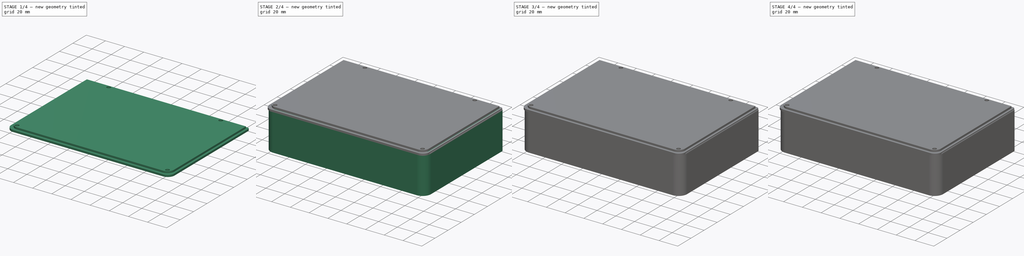
[diagram: build sequence overview — one tinted view per stage of 4, left to right]
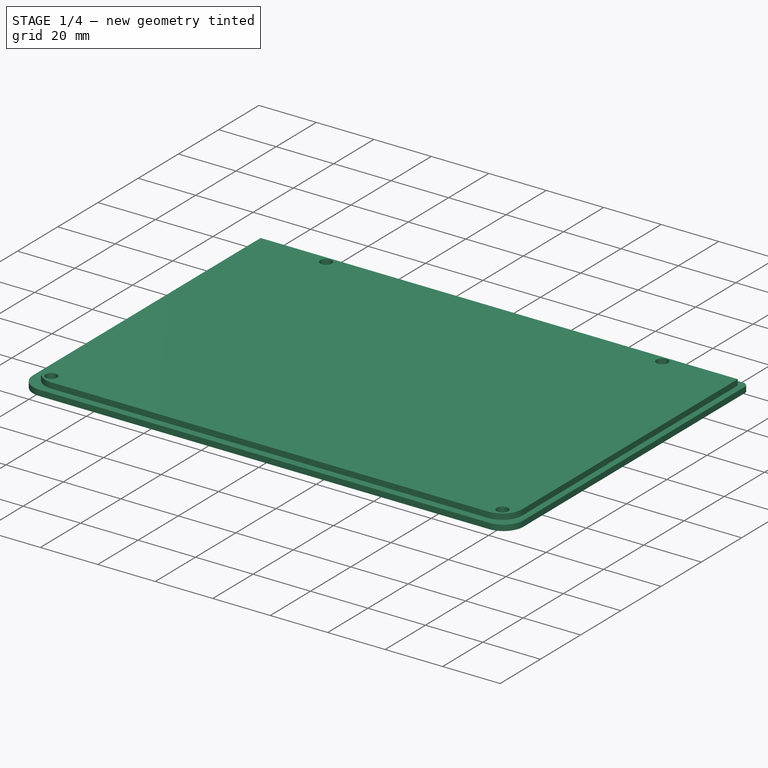
[diagram: stage 1 of 4 — iso view after this stage's code; geometry added in this stage tinted green]
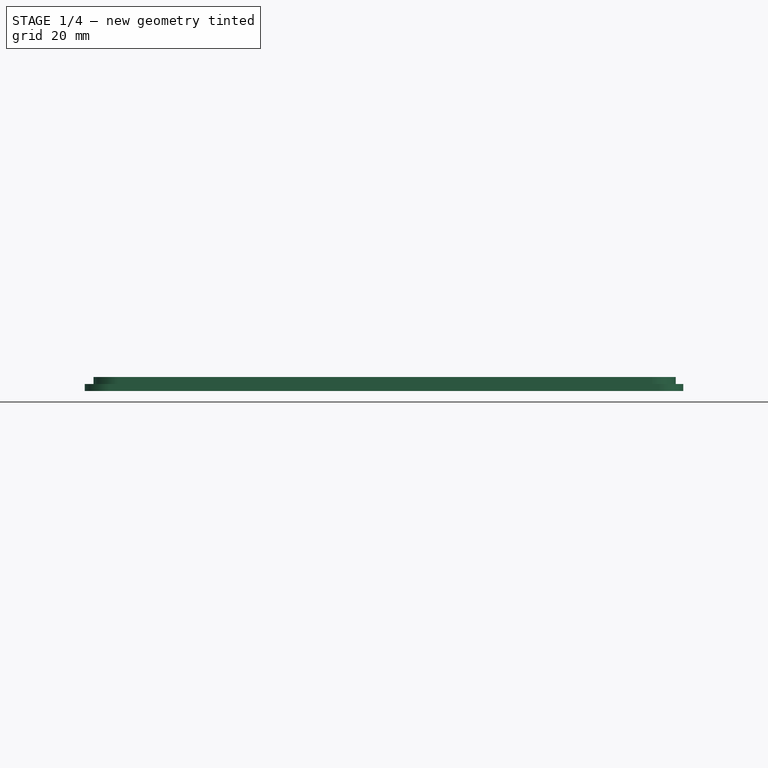
[diagram: stage 1 of 4 — front view after this stage's code; geometry added in this stage tinted green]
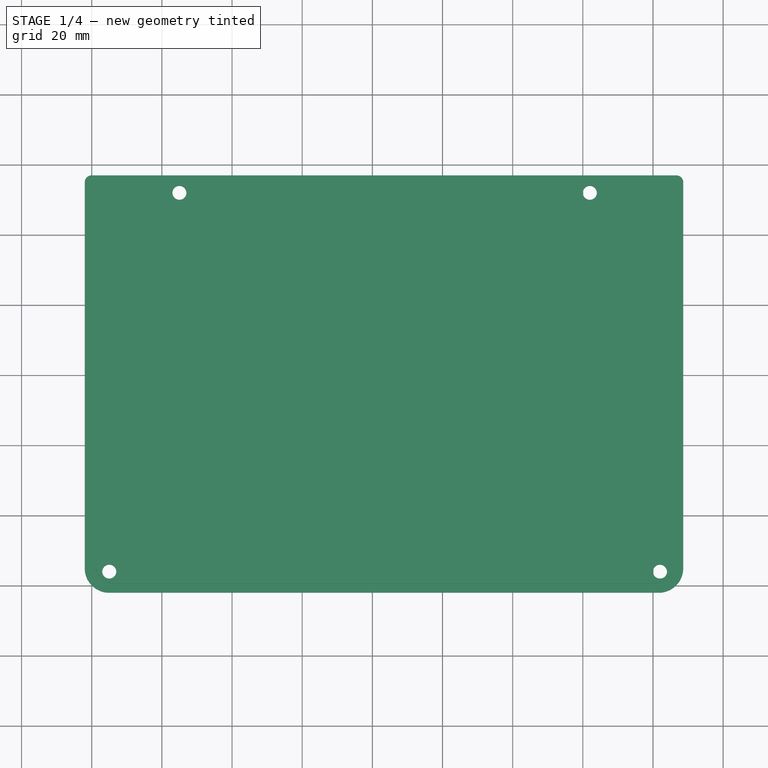
[diagram: stage 1 of 4 — top view after this stage's code; geometry added in this stage tinted green]
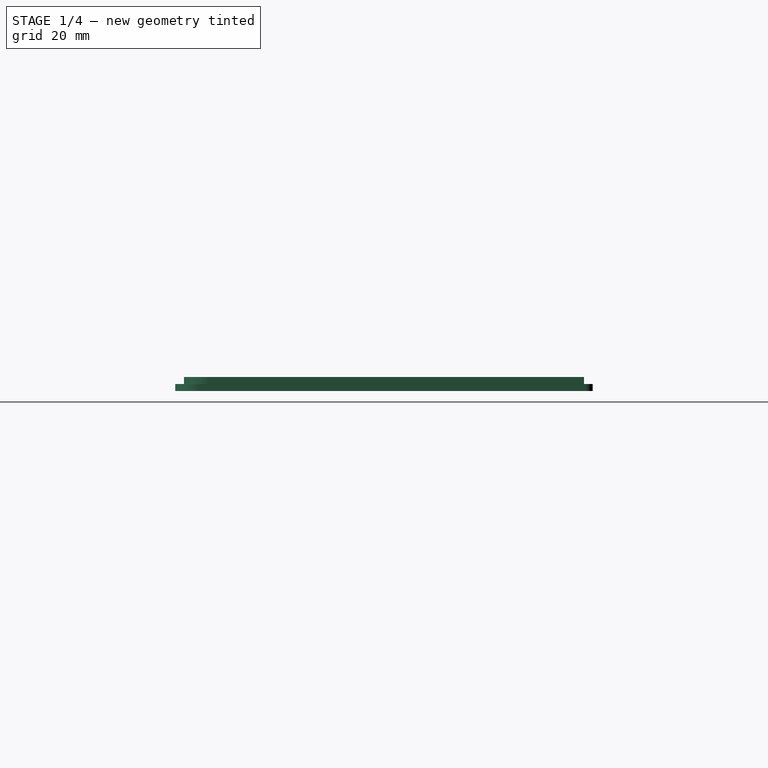
[diagram: stage 1 of 4 — right view after this stage's code; geometry added in this stage tinted green]
FCSTD DOCUMENT  (FreeCAD 0.19R24291 (Git))
Label: mbox
License: All rights reserved
LicenseURL: http://en.wikipedia.org/wiki/All_rights_reserved
objects: Sketcher::SketchObject×11, PartDesign::Pocket×6, PartDesign::Pad×5, Spreadsheet::Sheet×2, PartDesign::Body×2, PartDesign::Thickness×1, PartDesign::Chamfer×1
note: 39 computed .brp shape members not serialized (recipe doc carries the construction recipe); baked Part::Feature solids carry a one-line shape summary decoded from their .brp

FEATURE [PartDesign::Body] Body
  Group = -> [Sketch,Pad,Thickness001,Pocket,Sketch028,Sketch029,Pocket001,Sketch030,Pocket002,Sketch031,Pad001,Sketch032,Pocket003,Sketch037,Pad006,Sketch040,Pocket006]
  Origin = -> Origin
  Tip = -> Pocket006
FEATURE [Spreadsheet::Sheet] Spreadsheet001  label="c001"
  cells = A1=lx; B1(lx)=167; A2=ly; B2(ly)=115; A3=lz; B3(lz)=37; A4=rbtn; B4(rbtn)=12
FEATURE [Sketcher::SketchObject] Sketch042
  AttachmentOffset = pos=(0.5,0.5,0) rot=(0,0,1;0rad)
  FullyConstrained = true
  MapMode = 5
  Placement = pos=(0.5,0.5,0) rot=(0,0,1;0rad)
  Support = -> [XY_Plane001]
  expr: Constraints[13] = <<c001>>.ly - 1
  expr: Constraints[12] = <<c001>>.ly - 1
  expr: Constraints[9] = <<c001>>.lx - 1
  sketch-geometry (6):
    g0: LineSegment StartX=166 StartY=114 StartZ=0 EndX=166 EndY=7 EndZ=0
    g1: LineSegment StartX=159 StartY=0 StartZ=0 EndX=7 EndY=0 EndZ=0
    g2: LineSegment StartX=0 StartY=7 StartZ=0 EndX=0 EndY=114 EndZ=0
    g3: ArcOfCircle CenterX=159 CenterY=7 CenterZ=0 NormalX=0 NormalY=0 NormalZ=1 AngleXU=0 Radius=7 StartAngle=4.71239 EndAngle=6.28319
    g4: ArcOfCircle CenterX=7 CenterY=7 CenterZ=0 NormalX=0 NormalY=0 NormalZ=1 AngleXU=0 Radius=7 StartAngle=3.14159 EndAngle=4.71239
    g5: LineSegment StartX=0 StartY=114 StartZ=0 EndX=166 EndY=114 EndZ=0
  constraints (16):
    c: Horizontal(g1)
    c: Vertical(g0)
    c: Vertical(g2)
    c: Tangent(g0,g3) = 1.5708
    c: Tangent(g1,g3) = 1.5708
    c: Tangent(g2,g4) = 1.5708
    c: Tangent(g1,g4) = 1.5708
    c: DistanceY(g1,g3) = 7
    c: DistanceY(g1,g4) = 7
    c: DistanceX(g2,g0) = 166
    c: DistanceX(g4) = 7
    c: DistanceY(g4) = 7
    c: DistanceY(g-1,g2) = 114
    c: DistanceY(g-1,g0) = 114
    c: Coincident(g5,g0)
    c: Coincident(g5,g2)
FEATURE [Sketcher::SketchObject] Sketch043
  FullyConstrained = false
  expr: Constraints[10] = <<c>>.lx - 5
  expr: Constraints[5] = <<c>>.ly - 5 + 2
  expr: Constraints[4] = <<c>>.ly - 5 + 2
  expr: Constraints[3] = <<c>>.lx - 25
  sketch-geometry (4):
    g0: Circle CenterX=25 CenterY=112 CenterZ=0 NormalX=0 NormalY=0 NormalZ=1 AngleXU=0 Radius=2
    g1: Circle CenterX=142 CenterY=112 CenterZ=0 NormalX=0 NormalY=0 NormalZ=1 AngleXU=0 Radius=2
    g2: Circle CenterX=5 CenterY=4 CenterZ=0 NormalX=0 NormalY=0 NormalZ=1 AngleXU=0 Radius=2
    g3: Circle CenterX=162 CenterY=4 CenterZ=0 NormalX=0 NormalY=0 NormalZ=1 AngleXU=0 Radius=2
  constraints (11):
    c: Radius(g0) = 2
    c: Equal(g0,g1) = 2
    c: DistanceX(g-1,g0) = 25
    c: DistanceX(g-1,g1) = 142
    c: DistanceY(g-1,g0) = 112
    c: DistanceY(g-1,g1) = 112
    c: Equal(g0,g2) = 2
    c: DistanceX(g-1,g2) = 5
    c: DistanceY(g-1,g2) = 4
    c: DistanceY(g-1,g3) = 4
    c: DistanceX(g-1,g3) = 162
FEATURE [Sketcher::SketchObject] Sketch044
  AttachmentOffset = pos=(-2,-2,0) rot=(0,0,1;0rad)
  FullyConstrained = false
  MapMode = 5
  Placement = pos=(-2,-2,0) rot=(0,0,1;0rad)
  Support = -> [XY_Plane001]
  sketch-geometry (8):
    g0: LineSegment StartX=170.637 StartY=117 StartZ=0 EndX=170.637 EndY=7 EndZ=0
    g1: LineSegment StartX=163.637 StartY=1e-16 StartZ=0 EndX=7 EndY=1e-16 EndZ=0
    g2: LineSegment StartX=0 StartY=7 StartZ=0 EndX=0 EndY=117 EndZ=0
    g3: ArcOfCircle CenterX=163.637 CenterY=7 CenterZ=0 NormalX=0 NormalY=0 NormalZ=1 AngleXU=0 Radius=7 StartAngle=4.71239 EndAngle=6.28319
    g4: ArcOfCircle CenterX=7 CenterY=7 CenterZ=0 NormalX=0 NormalY=0 NormalZ=1 AngleXU=0 Radius=7 StartAngle=3.14159 EndAngle=4.71239
    g5: LineSegment StartX=2 StartY=119 StartZ=0 EndX=168.637 EndY=119 EndZ=0
    g6: ArcOfCircle CenterX=2 CenterY=117 CenterZ=0 NormalX=0 NormalY=0 NormalZ=1 AngleXU=0 Radius=2 StartAngle=1.5708 EndAngle=3.14159
    g7: ArcOfCircle CenterX=168.637 CenterY=117 CenterZ=0 NormalX=0 NormalY=0 NormalZ=1 AngleXU=0 Radius=2 StartAngle=8e-16 EndAngle=1.5708
  constraints (19):
    c: Horizontal(g1)
    c: Vertical(g0)
    c: Vertical(g2)
    c: Tangent(g0,g3) = 1.5708
    c: Tangent(g1,g3) = 1.5708
    c: Tangent(g2,g4) = 1.5708
    c: Tangent(g1,g4) = 1.5708
    c: DistanceY(g1,g3) = 7
    c: DistanceY(g1,g4) = 7
    c: DistanceX(g4) = 7
    c: DistanceY(g4) = 7
    c: Tangent(g5,g6) = 1.5708
    c: Tangent(g2,g6) = 1.5708
    c: DistanceX(g2,g6) = 2
    c: Tangent(g0,g7) = 1.5708
    c: Tangent(g5,g7) = 1.5708
    c: DistanceX(g7,g0) = 2
    c: DistanceY(g-1,g5) = 119
    c: DistanceY(g1,g5) = 119
FEATURE [PartDesign::Pad] Pad007
  Direction = (1,1,1)
  Length = 4
  Length2 = 100
  Profile = -> Sketch042
  Type = 0
FEATURE [PartDesign::Pad] Pad008
  BaseFeature = -> Pad007
  Direction = (1,1,1)
  Length = 2
  Length2 = 100
  Profile = -> Sketch044
  Type = 0
FEATURE [PartDesign::Pocket] Pocket007
  BaseFeature = -> Pad008
  Length = 5
  Length2 = 100
  Profile = -> Sketch043
  Reversed = true
  Type = 0
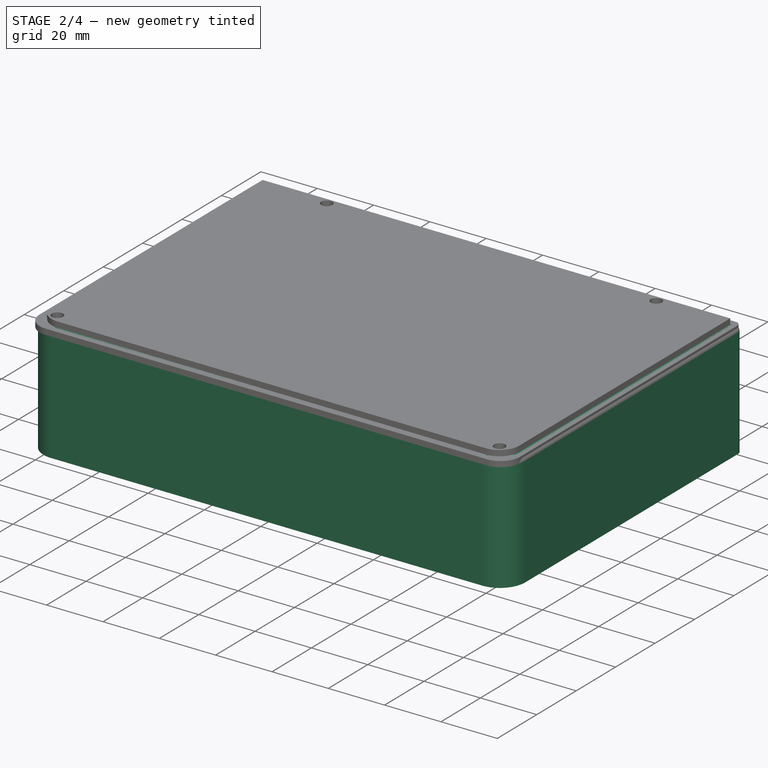
[diagram: stage 2 of 4 — iso view after this stage's code; geometry added in this stage tinted green]
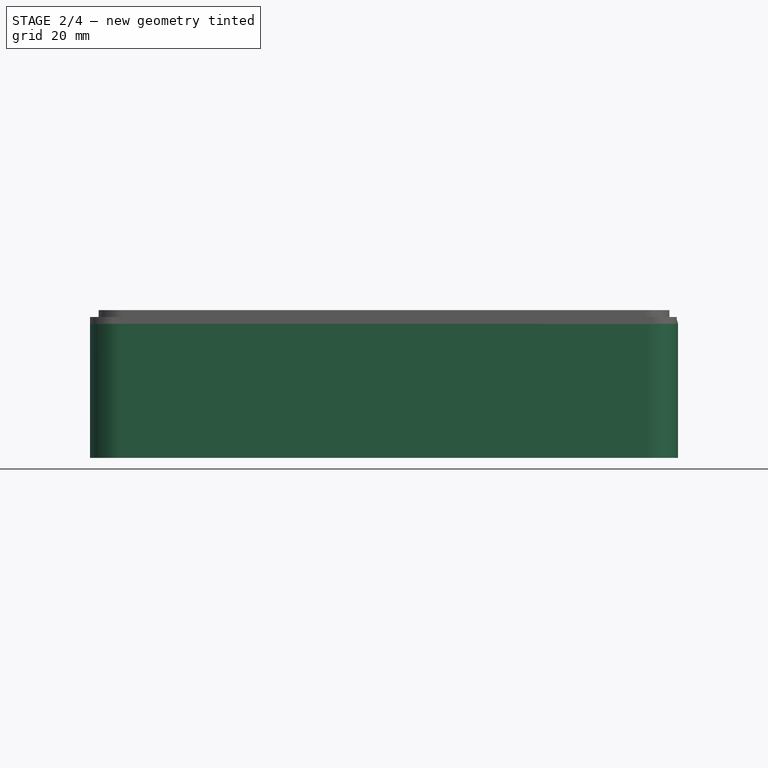
[diagram: stage 2 of 4 — front view after this stage's code; geometry added in this stage tinted green]
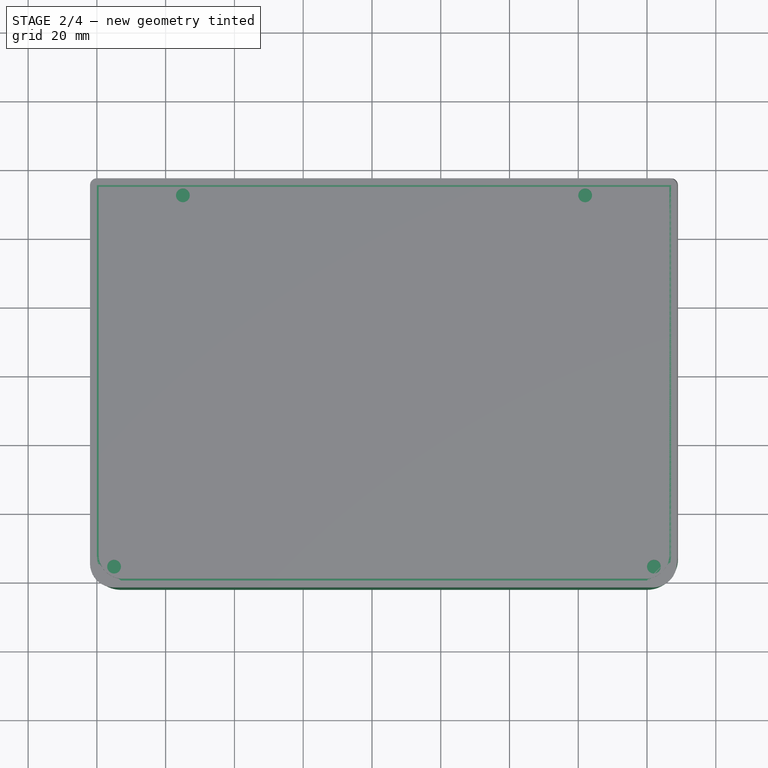
[diagram: stage 2 of 4 — top view after this stage's code; geometry added in this stage tinted green]
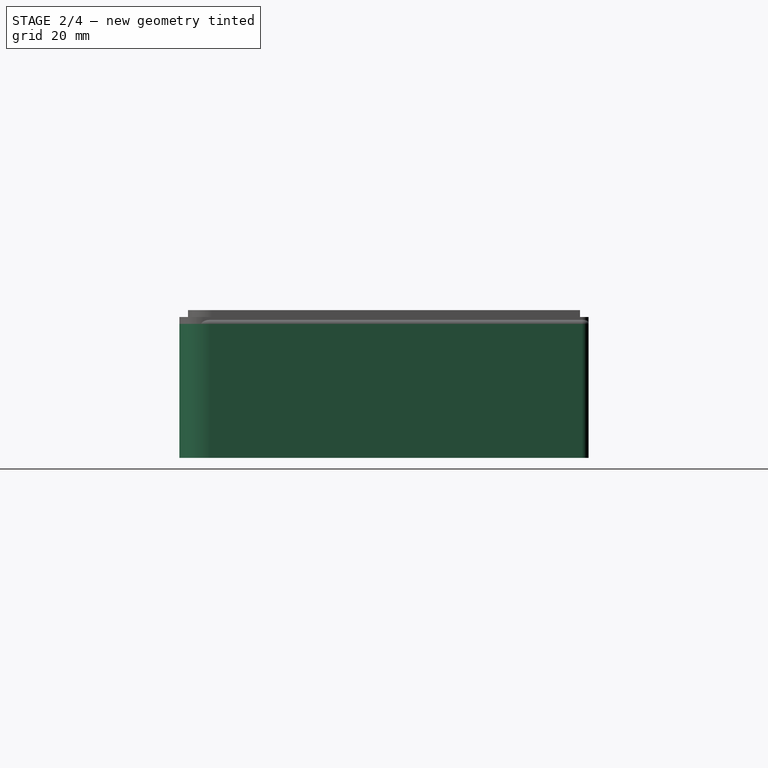
[diagram: stage 2 of 4 — right view after this stage's code; geometry added in this stage tinted green]
FEATURE [Sketcher::SketchObject] Sketch
  FullyConstrained = false
  MapMode = 5
  Support = -> [XY_Plane]
  expr: Constraints[9] = <<c>>.lx
  expr: Constraints[12] = <<c>>.ly
  expr: Constraints[13] = <<c>>.ly
  sketch-geometry (6):
    g0: LineSegment StartX=167 StartY=115 StartZ=0 EndX=167 EndY=7 EndZ=0
    g1: LineSegment StartX=160 StartY=2.66e-14 StartZ=0 EndX=7 EndY=2.66e-14 EndZ=0
    g2: LineSegment StartX=2.4e-14 StartY=7 StartZ=0 EndX=2.4e-14 EndY=115 EndZ=0
    g3: ArcOfCircle CenterX=160 CenterY=7 CenterZ=0 NormalX=0 NormalY=0 NormalZ=1 AngleXU=0 Radius=7 StartAngle=4.71239 EndAngle=6.28319
    g4: ArcOfCircle CenterX=7 CenterY=7 CenterZ=0 NormalX=0 NormalY=0 NormalZ=1 AngleXU=0 Radius=7 StartAngle=3.14159 EndAngle=4.71239
    g5: LineSegment StartX=0 StartY=115 StartZ=0 EndX=167 EndY=115 EndZ=0
  constraints (15):
    c: Horizontal(g1)
    c: Vertical(g0)
    c: Vertical(g2)
    c: Tangent(g0,g3) = 1.5708
    c: Tangent(g1,g3) = 1.5708
    c: Tangent(g2,g4) = 1.5708
    c: Tangent(g1,g4) = 1.5708
    c: DistanceY(g1,g3) = 7
    c: DistanceY(g1,g4) = 7
    c: DistanceX(g2,g0) = 167
    c: DistanceX(g4) = 7
    c: DistanceY(g4) = 7
    c: DistanceY(g-1,g2) = 115
    c: DistanceY(g-1,g0) = 115
    c: Coincident(g5,g0)
FEATURE [PartDesign::Pad] Pad
  AllowMultiFace = false
  Direction = (1,1,1)
  Length = 39
  Length2 = 100
  Profile = -> Sketch
  Reversed = true
  Type = 0
  expr: Length = <<c>>.lz + 2
FEATURE [Sketcher::SketchObject] Sketch028
  FullyConstrained = false
  MapMode = 5
  Placement = pos=(0,0,20) rot=(0,0,1;0rad)
  expr: Constraints[11] = <<c>>.lx / 4 - <<c>>.rbtn / 2
  expr: Constraints[37] = <<c>>.lx / 2
  expr: Constraints[35] = <<c>>.rbtn
  expr: Constraints[4] = <<c>>.rbtn
  expr: Constraints[38] = 3 * <<c>>.lx / 4 + <<c>>.rbtn / 2
  expr: Constraints[36] = <<c>>.rbtn
  sketch-geometry (13):
    g0: ArcOfCircle CenterX=35.75 CenterY=84 CenterZ=0 NormalX=0 NormalY=0 NormalZ=1 AngleXU=0 Radius=12.0922 StartAngle=3.26513 EndAngle=9.30124
    g1: LineSegment StartX=22.54 StartY=85.49 StartZ=0 EndX=23.75 EndY=85.49 EndZ=0
    g2: LineSegment StartX=22.54 StartY=82.51 StartZ=0 EndX=23.75 EndY=82.51 EndZ=0
    g3: LineSegment StartX=22.54 StartY=85.49 StartZ=0 EndX=22.54 EndY=82.51 EndZ=0
    g4: ArcOfCircle CenterX=83.5 CenterY=84 CenterZ=0 NormalX=0 NormalY=0 NormalZ=1 AngleXU=0 Radius=12.0922 StartAngle=3.26513 EndAngle=9.30124
    g5: LineSegment StartX=70.29 StartY=85.49 StartZ=0 EndX=71.5 EndY=85.49 EndZ=0
    g6: LineSegment StartX=70.29 StartY=82.51 StartZ=0 EndX=71.5 EndY=82.51 EndZ=0
    g7: LineSegment StartX=70.29 StartY=85.49 StartZ=0 EndX=70.29 EndY=82.51 EndZ=0
    g8: ArcOfCircle CenterX=131.25 CenterY=84 CenterZ=0 NormalX=0 NormalY=0 NormalZ=1 AngleXU=0 Radius=12.0922 StartAngle=3.26513 EndAngle=9.30124
    g9: LineSegment StartX=118.04 StartY=85.49 StartZ=0 EndX=119.25 EndY=85.49 EndZ=0
    g10: LineSegment StartX=118.04 StartY=82.51 StartZ=0 EndX=119.25 EndY=82.51 EndZ=0
    g11: LineSegment StartX=118.04 StartY=85.49 StartZ=0 EndX=118.04 EndY=82.51 EndZ=0
    g12: Circle CenterX=123 CenterY=30 CenterZ=0 NormalX=0 NormalY=0 NormalZ=1 AngleXU=0 Radius=7.5
  constraints (41):
    c: Horizontal(g1)
    c: Horizontal(g2)
    c: Coincident(g1,g0)
    c: Coincident(g2,g0)
    c: DistanceX(g0,g0) = 12
    c: DistanceX(g1,g0) = 1.21
    c: DistanceY(g2,g1) = 2.98
    c: DistanceX(g2,g0) = 1.21
    c: Coincident(g3,g1)
    c: Coincident(g3,g2)
    c: Vertical(g3)
    c: DistanceX(g-1,g0) = 35.75
    c: DistanceY(g-1,g0) = 84
    c: Horizontal(g5)
    c: Horizontal(g6)
    c: Coincident(g5,g4)
    c: Coincident(g6,g4)
    c: DistanceX(g5,g4) = 1.21
    c: DistanceY(g6,g5) = 2.98
    c: DistanceX(g6,g4) = 1.21
    c: Coincident(g7,g5)
    c: Coincident(g7,g6)
    c: Vertical(g7)
    c: DistanceY(g-1,g4) = 84
    c: Horizontal(g9)
    c: Horizontal(g10)
    c: Coincident(g9,g8)
    c: Coincident(g10,g8)
    c: DistanceX(g9,g8) = 1.21
    c: DistanceY(g10,g9) = 2.98
    c: DistanceX(g10,g8) = 1.21
    c: Coincident(g11,g9)
    c: Coincident(g11,g10)
    c: Vertical(g11)
    c: DistanceY(g-1,g8) = 84
    c: DistanceX(g8,g8) = 12
    c: DistanceX(g4,g4) = 12
    c: DistanceX(g-1,g4) = 83.5
    c: DistanceX(g-1,g8) = 131.25
    c: DistanceY(g-1,g12) = 30
    c: DistanceX(g-1,g12) = 123
FEATURE [Spreadsheet::Sheet] Spreadsheet  label="c"
  cells = A1=lx; B1(lx)=167; A2=ly; B2(ly)=115; A3=lz; B3(lz)=37; A4=rbtn; B4(rbtn)=12
FEATURE [Sketcher::SketchObject] Sketch029
  FullyConstrained = true
  Placement = pos=(0,0,0) rot=(1,0,0;1.5708rad)
  expr: Constraints[8] = <<c>>.lz - 1
  sketch-geometry (4):
    g0: ArcOfCircle CenterX=25 CenterY=-30.5 CenterZ=0 NormalX=0 NormalY=0 NormalZ=1 AngleXU=0 Radius=5.5 StartAngle=1.5708 EndAngle=4.71239
    g1: ArcOfCircle CenterX=50 CenterY=-30.5 CenterZ=0 NormalX=0 NormalY=0 NormalZ=1 AngleXU=0 Radius=5.5 StartAngle=4.71239 EndAngle=7.85398
    g2: LineSegment StartX=25 StartY=-36 StartZ=0 EndX=50 EndY=-36 EndZ=0
    g3: LineSegment StartX=25 StartY=-25 StartZ=0 EndX=50 EndY=-25 EndZ=0
  constraints (10):
    c: Tangent(g0,g3) = 1.5708
    c: Tangent(g0,g2) = -1.5708
    c: Tangent(g2,g1) = -1.5708
    c: Tangent(g3,g1) = 1.5708
    c: Horizontal(g2)
    c: Equal(g0,g1)
    c: DistanceX(g0,g1) = 25
    c: DistanceY(g0,g0) = 11
    c: DistanceY(g0,g-1) = 36
    c: DistanceX(g-1,g0) = 25
FEATURE [Sketcher::SketchObject] Sketch030
  FullyConstrained = false
  Placement = pos=(-2,0,0) rot=(0.57735,-0.57735,-0.57735;2.0944rad)
  expr: Constraints[18] = <<c>>.lz / 2
  expr: Constraints[19] = 70 + (<<c>>.ly - 70) / 2
  expr: Constraints[20] = 54.3 + 9 - 4.5 / 2
  expr: Constraints[22] = 6.5 - 4.5 / 2
  sketch-geometry (8):
    g0: LineSegment StartX=-101.5 StartY=-14 StartZ=0 EndX=-83.5 EndY=-14 EndZ=0
    g1: LineSegment StartX=-83.5 StartY=-14 StartZ=0 EndX=-83.5 EndY=-23 EndZ=0
    g2: LineSegment StartX=-83.5 StartY=-23 StartZ=0 EndX=-101.5 EndY=-23 EndZ=0
    g3: LineSegment StartX=-101.5 StartY=-23 StartZ=0 EndX=-101.5 EndY=-14 EndZ=0
    g4: Circle CenterX=-106.5 CenterY=-18.5 CenterZ=0 NormalX=0 NormalY=0 NormalZ=1 AngleXU=0 Radius=1.75
    g5: Circle CenterX=-78.5 CenterY=-18.5 CenterZ=0 NormalX=0 NormalY=0 NormalZ=1 AngleXU=0 Radius=1.75
    g6: GeomPoint X=-92.5 Y=-23 Z=0
    g7: Circle CenterX=-61.05 CenterY=-4.25 CenterZ=0 NormalX=0 NormalY=0 NormalZ=1 AngleXU=0 Radius=5
  constraints (23):
    c: Coincident(g0,g1)
    c: Coincident(g1,g2)
    c: Coincident(g2,g3)
    c: Coincident(g3,g0)
    c: Horizontal(g0)
    c: Horizontal(g2)
    c: Vertical(g1)
    c: Vertical(g3)
    c: DistanceX(g0,g0) = 18
    c: DistanceY(g1,g0) = 9
    c: Radius(g4) = 1.75
    c: Equal(g4,g5) = 1.75
    c: DistanceX(g4,g5) = 28
    c: DistanceY(g5,g4) = 0
    c: DistanceY(g4,g0) = 4.5
    c: PointOnObject(g6,g2)
    c: DistanceX(g2,g6) = 9
    c: DistanceX(g4,g6) = 14
    c: DistanceY(g5,g-1) = 18.5
    c: DistanceX(g6,g-1) = 92.5
    c: DistanceX(g7,g-1) = 61.05
    c: Radius(g7) = 5
    c: DistanceY(g7,g-1) = 4.25
FEATURE [Sketcher::SketchObject] Sketch031
  FullyConstrained = false
  expr: Constraints[2] = <<c>>.ly - 5 + 2
  expr: Constraints[5] = <<c>>.lx - 25
  expr: Constraints[10] = <<c>>.lx - 5
  expr: Constraints[4] = <<c>>.ly - 5 + 2
  sketch-geometry (4):
    g0: Circle CenterX=25 CenterY=112 CenterZ=0 NormalX=0 NormalY=0 NormalZ=1 AngleXU=0 Radius=5
    g1: Circle CenterX=142 CenterY=112 CenterZ=0 NormalX=0 NormalY=0 NormalZ=1 AngleXU=0 Radius=5
    g2: Circle CenterX=5 CenterY=4 CenterZ=0 NormalX=0 NormalY=0 NormalZ=1 AngleXU=0 Radius=5
    g3: Circle CenterX=162 CenterY=4 CenterZ=0 NormalX=0 NormalY=0 NormalZ=1 AngleXU=0 Radius=5
  constraints (11):
    c: Radius(g0) = 5
    c: DistanceX(g-1,g0) = 25
    c: DistanceY(g-1,g0) = 112
    c: Radius(g1) = 5
    c: DistanceY(g-1,g1) = 112
    c: DistanceX(g-1,g1) = 142
    c: Equal(g0,g2) = 5
    c: DistanceX(g-1,g2) = 5
    c: DistanceY(g-1,g2) = 4
    c: DistanceY(g-1,g3) = 4
    c: DistanceX(g-1,g3) = 162
FEATURE [Sketcher::SketchObject] Sketch032
  FullyConstrained = false
  expr: Constraints[3] = <<c>>.lx - 25
  expr: Constraints[4] = <<c>>.ly - 5 + 2
  expr: Constraints[5] = <<c>>.ly - 5 + 2
  expr: Constraints[10] = <<c>>.lx - 5
  sketch-geometry (4):
    g0: Circle CenterX=25 CenterY=112 CenterZ=0 NormalX=0 NormalY=0 NormalZ=1 AngleXU=0 Radius=2
    g1: Circle CenterX=142 CenterY=112 CenterZ=0 NormalX=0 NormalY=0 NormalZ=1 AngleXU=0 Radius=2
    g2: Circle CenterX=5 CenterY=4 CenterZ=0 NormalX=0 NormalY=0 NormalZ=1 AngleXU=0 Radius=2
    g3: Circle CenterX=162 CenterY=4 CenterZ=0 NormalX=0 NormalY=0 NormalZ=1 AngleXU=0 Radius=2
  constraints (11):
    c: Radius(g0) = 2
    c: Equal(g0,g1) = 2
    c: DistanceX(g-1,g0) = 25
    c: DistanceX(g-1,g1) = 142
    c: DistanceY(g-1,g0) = 112
    c: DistanceY(g-1,g1) = 112
    c: Equal(g0,g2) = 2
    c: DistanceX(g-1,g2) = 5
    c: DistanceY(g-1,g2) = 4
    c: DistanceY(g-1,g3) = 4
    c: DistanceX(g-1,g3) = 162
FEATURE [Sketcher::SketchObject] Sketch037
  FullyConstrained = false
  sketch-geometry (28):
    g0: LineSegment StartX=0 StartY=7 StartZ=0 EndX=27 EndY=7 EndZ=0
    g1: LineSegment StartX=27 StartY=7 StartZ=0 EndX=27 EndY=9 EndZ=0
    g2: LineSegment StartX=27 StartY=9 StartZ=0 EndX=0 EndY=9 EndZ=0
    g3: LineSegment StartX=0 StartY=9 StartZ=0 EndX=0 EndY=7 EndZ=0
    g4: LineSegment StartX=27 StartY=7 StartZ=0 EndX=25 EndY=7 EndZ=0
    g5: LineSegment StartX=25 StartY=7 StartZ=0 EndX=25 EndY=0 EndZ=0
    g6: LineSegment StartX=25 StartY=0 StartZ=0 EndX=27 EndY=0 EndZ=0
    g7: LineSegment StartX=27 StartY=0 StartZ=0 EndX=27 EndY=7 EndZ=0
    g8: LineSegment StartX=25 StartY=0 StartZ=0 EndX=47 EndY=0 EndZ=0
    g9: LineSegment StartX=47 StartY=0 StartZ=0 EndX=47 EndY=-0.641479 EndZ=0
    g10: LineSegment StartX=47 StartY=-0.641479 StartZ=0 EndX=25 EndY=-0.641479 EndZ=0
    g11: LineSegment StartX=25 StartY=-0.641479 StartZ=0 EndX=25 EndY=0 EndZ=0
    g12: LineSegment StartX=47 StartY=0 StartZ=0 EndX=45 EndY=0 EndZ=0
    g13: LineSegment StartX=45 StartY=0 StartZ=0 EndX=45 EndY=7 EndZ=0
    g14: LineSegment StartX=45 StartY=7 StartZ=0 EndX=47 EndY=7 EndZ=0
    g15: LineSegment StartX=47 StartY=7 StartZ=0 EndX=47 EndY=0 EndZ=0
    g16: LineSegment StartX=45 StartY=7 StartZ=0 EndX=120 EndY=7 EndZ=0
    g17: LineSegment StartX=120 StartY=7 StartZ=0 EndX=120 EndY=9 EndZ=0
    g18: LineSegment StartX=120 StartY=9 StartZ=0 EndX=45 EndY=9 EndZ=0
    g19: LineSegment StartX=45 StartY=9 StartZ=0 EndX=45 EndY=7 EndZ=0
    g20: LineSegment StartX=120 StartY=7 StartZ=0 EndX=118 EndY=7 EndZ=0
    g21: LineSegment StartX=118 StartY=7 StartZ=0 EndX=118 EndY=0 EndZ=0
    g22: LineSegment StartX=118 StartY=0 StartZ=0 EndX=120 EndY=0 EndZ=0
    g23: LineSegment StartX=120 StartY=0 StartZ=0 EndX=120 EndY=7 EndZ=0
    g24: LineSegment StartX=80.3896 StartY=7 StartZ=0 EndX=82.4487 EndY=7 EndZ=0
    g25: LineSegment StartX=82.4487 StartY=7 StartZ=0 EndX=82.4487 EndY=0 EndZ=0
    g26: LineSegment StartX=82.4487 StartY=0 StartZ=0 EndX=80.3896 EndY=0 EndZ=0
    g27: LineSegment StartX=80.3896 StartY=0 StartZ=0 EndX=80.3896 EndY=7 EndZ=0
  constraints (76):
    c: Coincident(g0,g1)
    c: Coincident(g1,g2)
    c: Coincident(g2,g3)
    c: Coincident(g3,g0)
    c: Horizontal(g0)
    c: Horizontal(g2)
    c: Vertical(g1)
    c: Vertical(g3)
    c: PointOnObject(g0,g-2)
    c: DistanceY(g0,g1) = 2
    c: DistanceY(g-1,g2) = 9
    c: DistanceX(g2,g1) = 27
    c: Coincident(g4,g5)
    c: Coincident(g5,g6)
    c: Coincident(g6,g7)
    c: Coincident(g7,g4)
    c: Horizontal(g4)
    c: Horizontal(g6)
    c: Vertical(g5)
    c: Vertical(g7)
    c: Coincident(g4,g0)
    c: PointOnObject(g5,g-1)
    c: DistanceX(g5,g6) = 2
    c: Coincident(g8,g9)
    c: Coincident(g9,g10)
    c: Coincident(g10,g11)
    c: Coincident(g11,g8)
    c: Horizontal(g8)
    c: Horizontal(g10)
    c: Vertical(g9)
    c: Vertical(g11)
    c: Coincident(g8,g5)
    c: DistanceX(g10,g9) = 22
    c: Coincident(g12,g13)
    c: Coincident(g13,g14)
    c: Coincident(g14,g15)
    c: Coincident(g15,g12)
    c: Horizontal(g12)
    c: Horizontal(g14)
    c: Vertical(g13)
    c: Vertical(g15)
    c: DistanceX(g13,g14) = 2
    c: DistanceY(g0,g13) = 0
    c: Coincident(g16,g17)
    c: Coincident(g17,g18)
    c: Coincident(g18,g19)
    c: Coincident(g19,g16)
    c: Horizontal(g16)
    c: Horizontal(g18)
    c: Vertical(g17)
    c: Vertical(g19)
    c: Coincident(g16,g13)
    c: DistanceY(g16,g17) = 2
    c: Coincident(g12,g8)
    c: DistanceX(g18,g17) = 75
    c: Coincident(g20,g21)
    c: Coincident(g21,g22)
    c: Coincident(g22,g23)
    c: Coincident(g23,g20)
    c: Horizontal(g20)
    c: Horizontal(g22)
    c: Vertical(g21)
    c: Vertical(g23)
    c: Coincident(g20,g16)
    c: PointOnObject(g21,g-1)
    c: DistanceX(g21,g22) = 2
    c: Coincident(g24,g25)
    c: Coincident(g25,g26)
    c: Coincident(g26,g27)
    c: Coincident(g27,g24)
    c: Horizontal(g24)
    c: Horizontal(g26)
    c: Vertical(g25)
    c: Vertical(g27)
    c: PointOnObject(g25,g-1)
    c: DistanceY(g13,g24) = 0
FEATURE [PartDesign::Thickness] Thickness001
  Base = -> Pad [Face8]
  BaseFeature = -> Pad
  Intersection = false
  Join = 0
  Mode = 0
  SupportTransform = false
  Value = 2
FEATURE [PartDesign::Chamfer] Chamfer
  Angle = 45
  Base = -> Pocket007 [Edge8,Edge10,Edge9,Edge7]
  BaseFeature = -> Pocket007
  ChamferType = 0
  FlipDirection = false
  Size = 1.5
  Size2 = 1
  SupportTransform = false
FEATURE [PartDesign::Body] Body001
  Group = -> [Sketch042,Sketch044,Pad007,Pad008,Sketch043,Pocket007,Chamfer]
  Origin = -> Origin001
  Tip = -> Chamfer
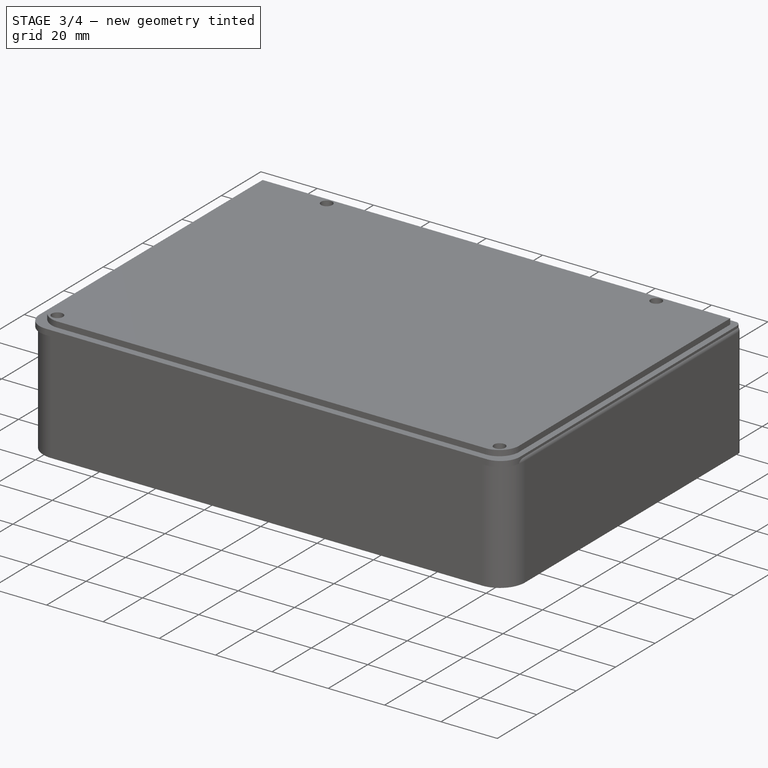
[diagram: stage 3 of 4 — iso view after this stage's code; geometry added in this stage tinted green]
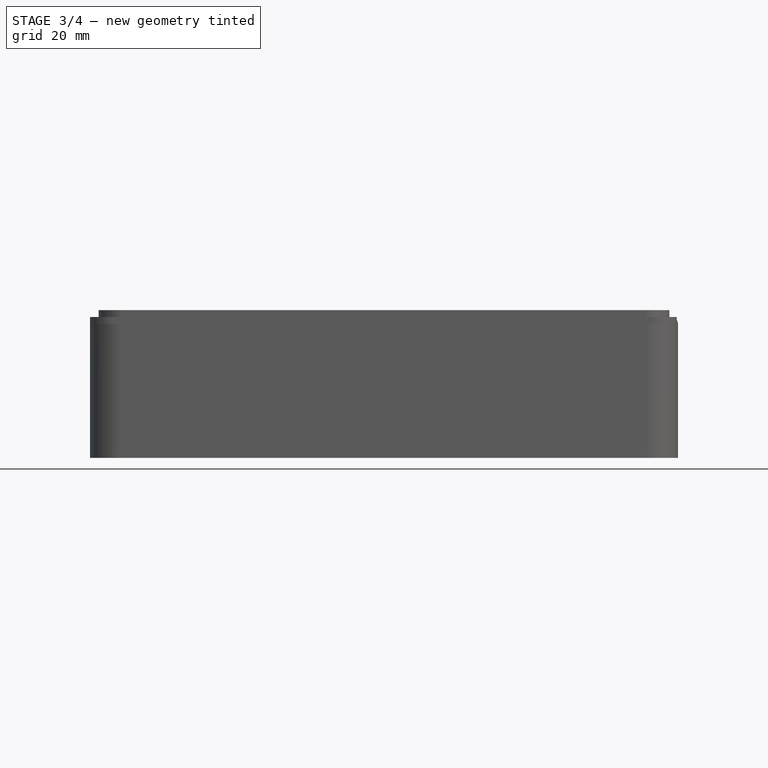
[diagram: stage 3 of 4 — front view after this stage's code; geometry added in this stage tinted green]
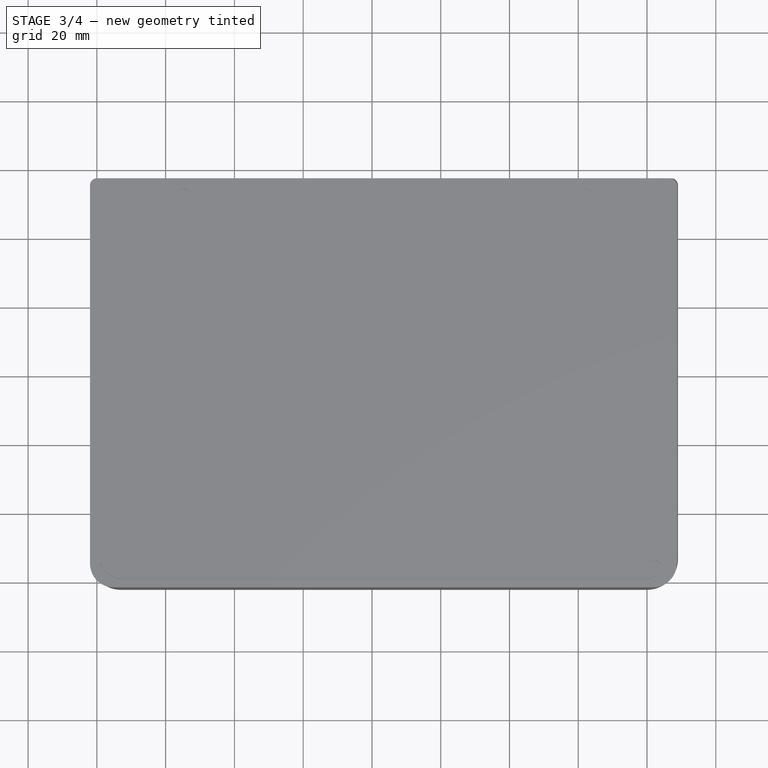
[diagram: stage 3 of 4 — top view after this stage's code; geometry added in this stage tinted green]
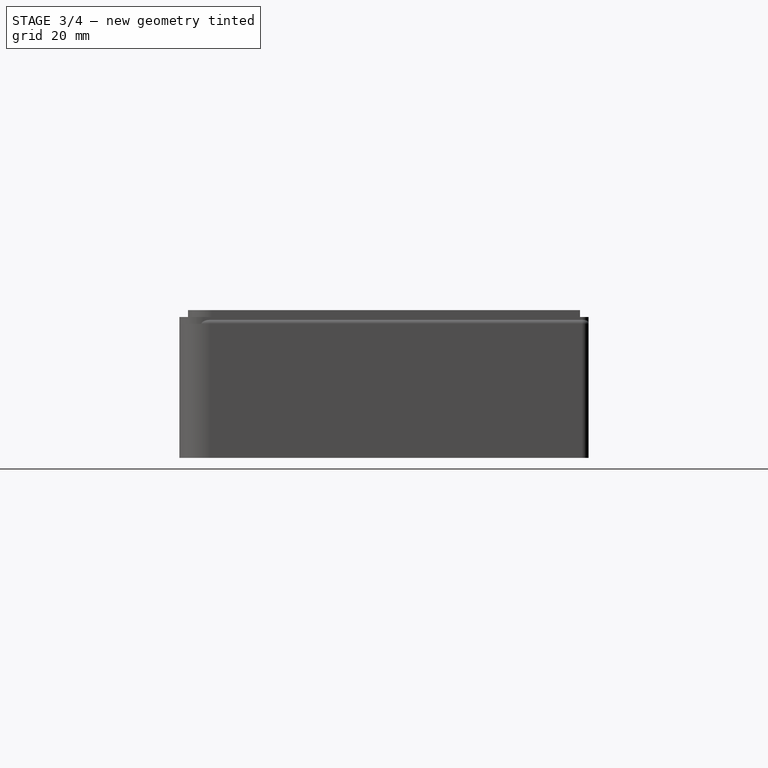
[diagram: stage 3 of 4 — right view after this stage's code; geometry added in this stage tinted green]
FEATURE [PartDesign::Pocket] Pocket  label="HolesButtons"
  AllowMultiFace = false
  BaseFeature = -> Thickness001
  Length = 50
  Length2 = 100
  Profile = -> Sketch028
  Type = 0
FEATURE [PartDesign::Pocket] Pocket001  label="ThinnerBottom"
  AllowMultiFace = false
  BaseFeature = -> Pocket
  Length = 1
  Length2 = 100
  Profile = -> Sketch029
  Reversed = true
  Type = 0
FEATURE [PartDesign::Pocket] Pocket002  label="USBMount"
  AllowMultiFace = false
  BaseFeature = -> Pocket001
  Length = 5
  Length2 = 100
  Profile = -> Sketch030
  Type = 0
FEATURE [PartDesign::Pad] Pad001  label="ScrewsOuter"
  AllowMultiFace = false
  BaseFeature = -> Pocket002
  Direction = (1,1,1)
  Length = 37
  Length2 = 100
  Profile = -> Sketch031
  Reversed = true
  Type = 0
  expr: Length = <<c>>.lz
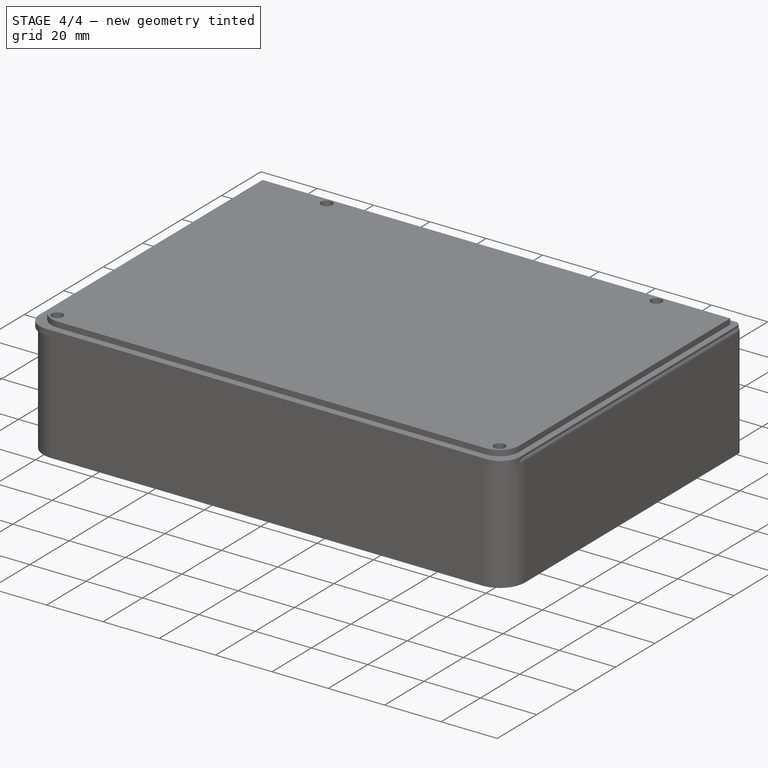
[diagram: stage 4 of 4 — iso view after this stage's code; geometry added in this stage tinted green]
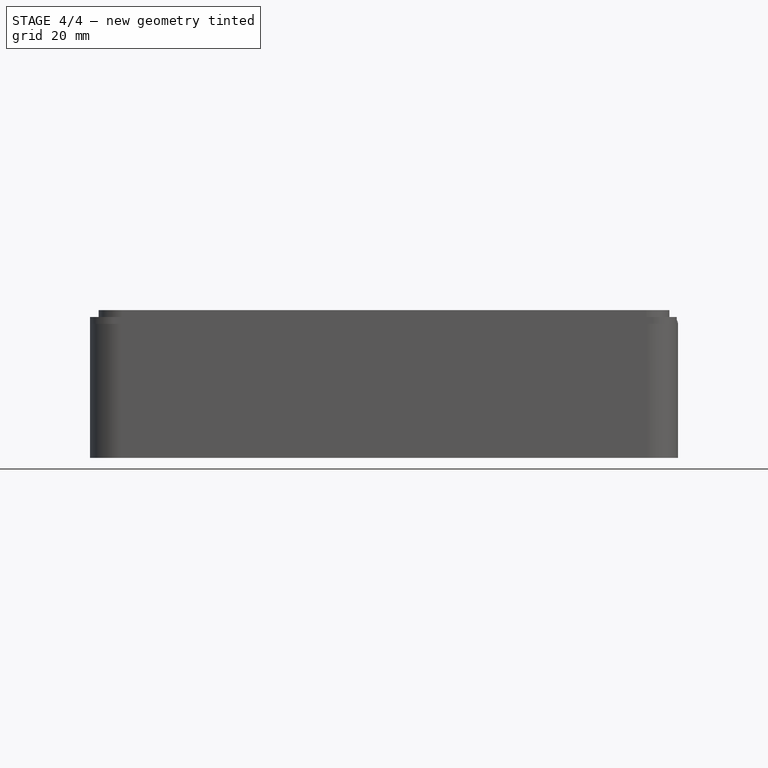
[diagram: stage 4 of 4 — front view after this stage's code; geometry added in this stage tinted green]
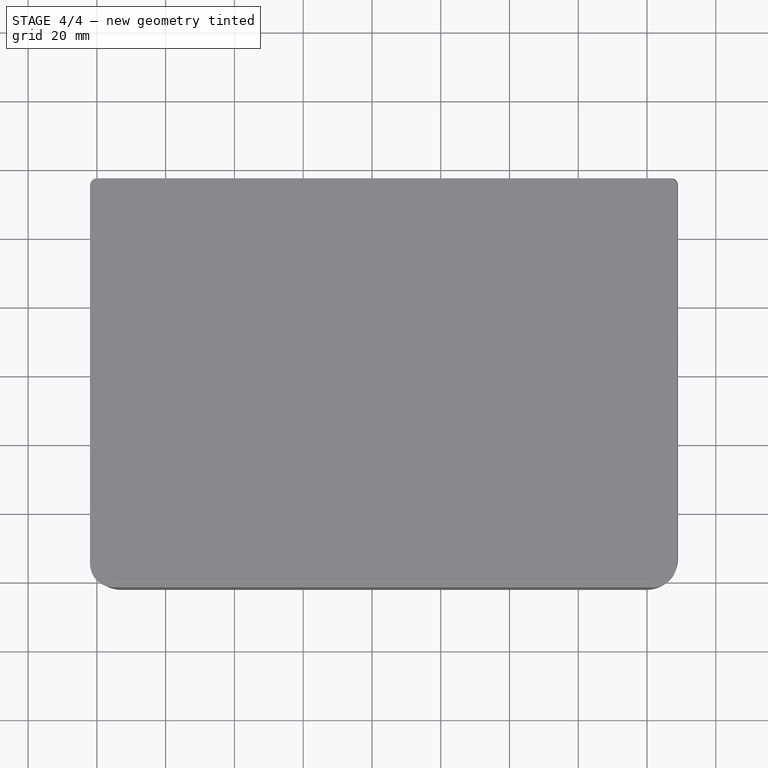
[diagram: stage 4 of 4 — top view after this stage's code; geometry added in this stage tinted green]
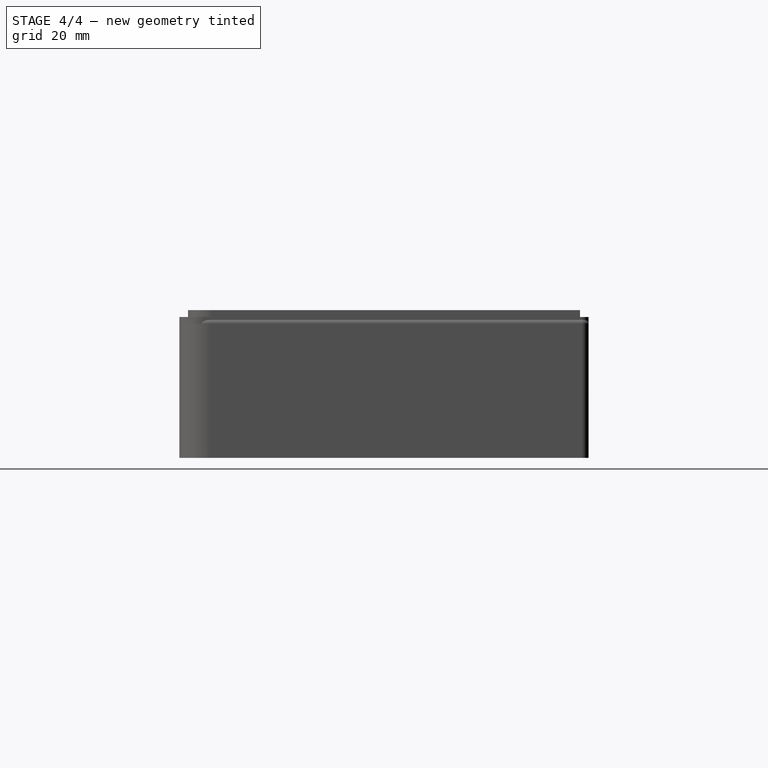
[diagram: stage 4 of 4 — right view after this stage's code; geometry added in this stage tinted green]
FEATURE [PartDesign::Pocket] Pocket003  label="ScrewInner"
  AllowMultiFace = false
  BaseFeature = -> Pad001
  Length = 37
  Length2 = 100
  Profile = -> Sketch032
  Type = 0
  expr: Length = <<c>>.lz
FEATURE [PartDesign::Pad] Pad006  label="PhoneRest"
  AllowMultiFace = false
  BaseFeature = -> Pocket003
  Direction = (1,1,1)
  Length = 8
  Length2 = 100
  Profile = -> Sketch037
  Reversed = true
  Type = 0
FEATURE [Sketcher::SketchObject] Sketch040
  FullyConstrained = false
  MapMode = 5
  Support = -> [XY_Plane]
  sketch-geometry (2):
    g0: Circle CenterX=72.2 CenterY=43 CenterZ=0 NormalX=0 NormalY=0 NormalZ=1 AngleXU=0 Radius=6
    g1: Circle CenterX=15 CenterY=43 CenterZ=0 NormalX=0 NormalY=0 NormalZ=1 AngleXU=0 Radius=10
  constraints (6):
    c: Radius(g0) = 6
    c: DistanceY(g-1,g0) = 43
    c: DistanceX(g-1,g0) = 72.2
    c: Radius(g1) = 10
    c: DistanceY(g-1,g1) = 43
    c: DistanceX(g-1,g1) = 15
FEATURE [PartDesign::Pocket] Pocket006
  AllowMultiFace = false
  BaseFeature = -> Pad006
  Length = 1
  Length2 = 100
  Profile = -> Sketch040
  Reversed = true
  Type = 0
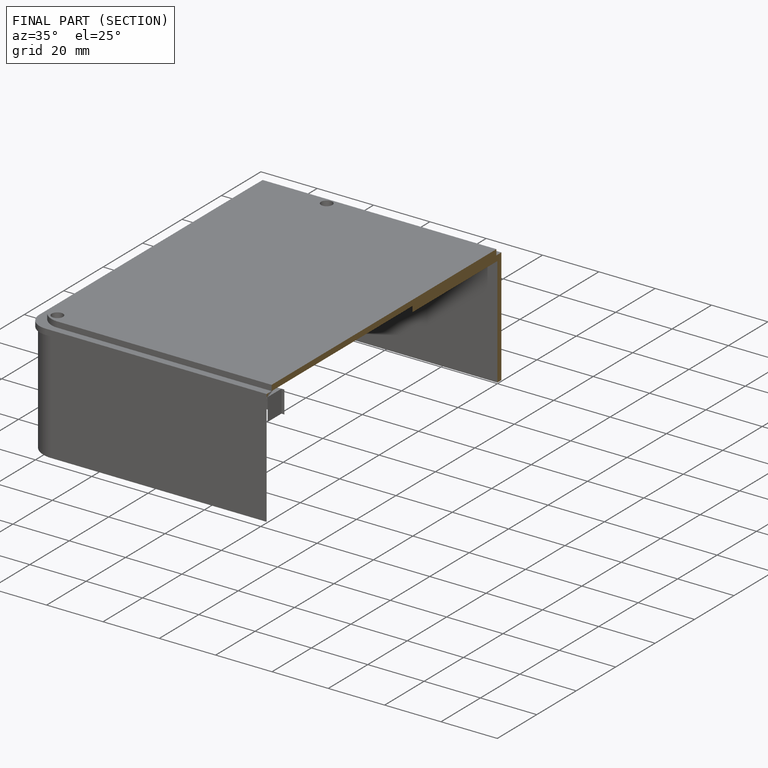
[diagram: finished part — half-section view (interior)]
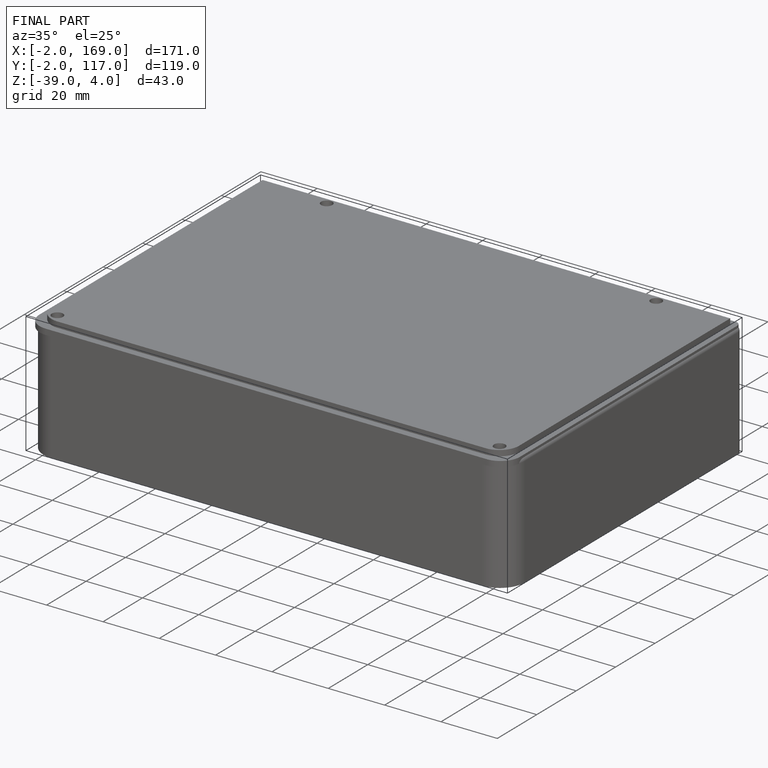
[diagram: finished part — iso view with bounding-box wireframe]
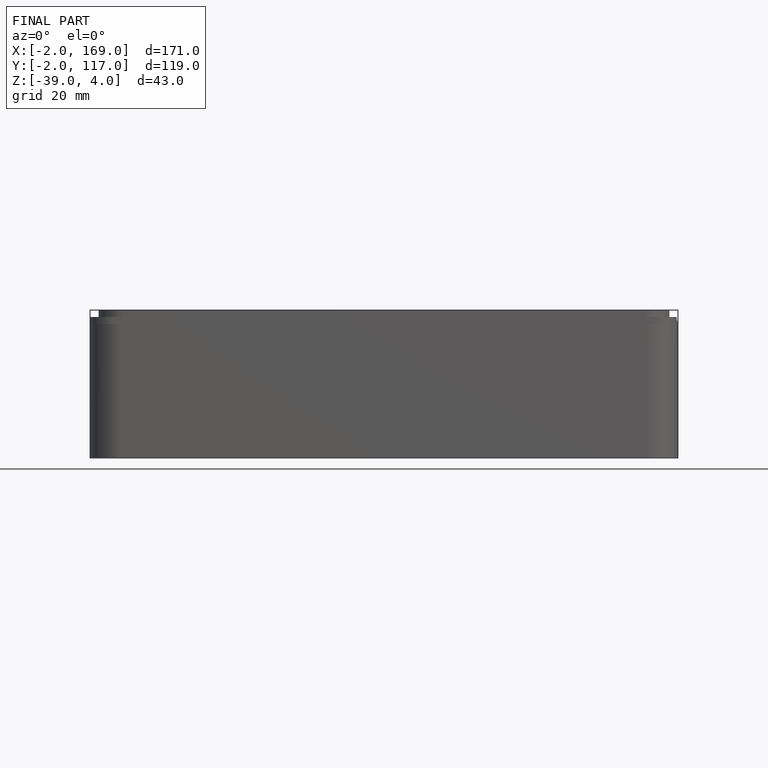
[diagram: finished part — front view with bounding-box wireframe]
